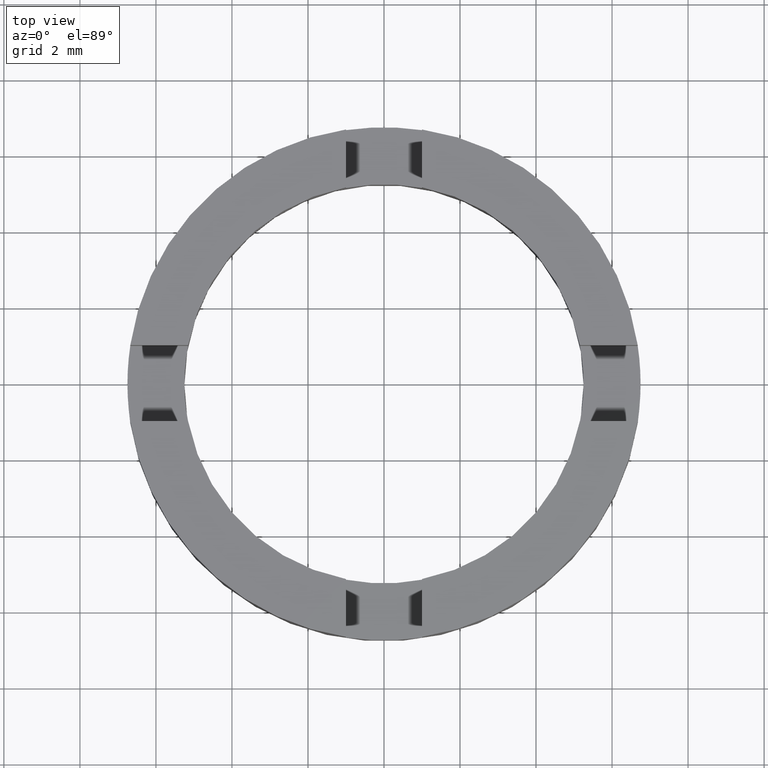
[diagram: clean part render]
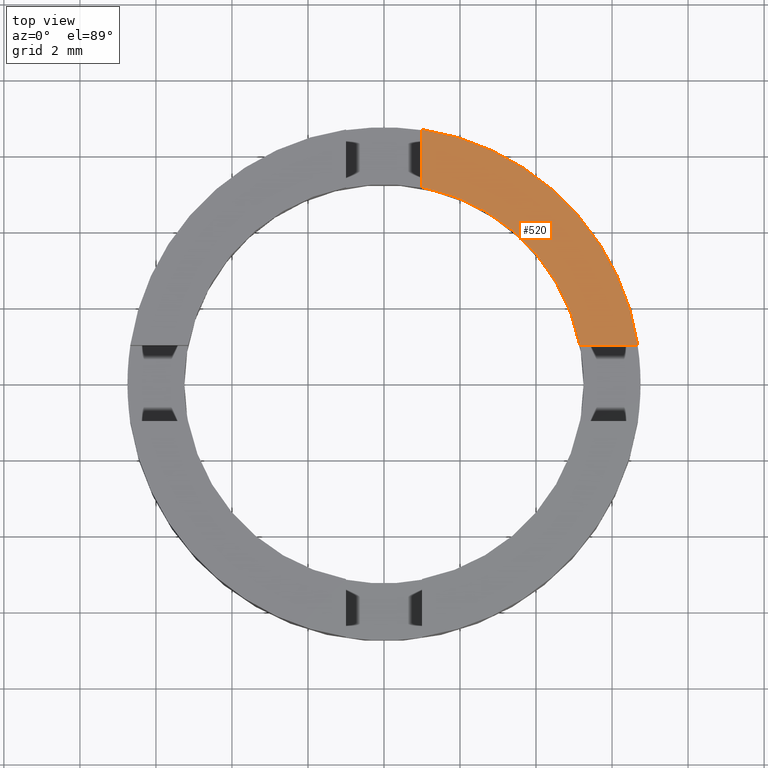
[diagram: same view with one face highlighted and labeled with its STEP entity id]
A machine part, top view. The second image highlights one B-rep face of the part: STEP entity #520.
In plain terms, the highlighted planar face has unit normal (0, 0, 1).
Its self-contained STEP definition (entity closure, byte-faithful):
#36 = CARTESIAN_POINT ( 'NONE',  ( 0.000000000000000000, 0.000000000000000000, 2.500000000000000000 ) ) ;
#70 = DIRECTION ( 'NONE',  ( 0.000000000000000000, 0.000000000000000000, 1.000000000000000000 ) ) ;
#107 = CIRCLE ( 'NONE', #419, 5.250000000000000000 ) ;
#115 = ORIENTED_EDGE ( 'NONE', *, *, #258, .F. ) ;
#123 = DIRECTION ( 'NONE',  ( 1.000000000000000000, 0.000000000000000000, 0.000000000000000000 ) ) ;
#125 = CARTESIAN_POINT ( 'NONE',  ( 1.000000000000001332, 6.675514961409343861, 2.500000000000000000 ) ) ;
#179 = CARTESIAN_POINT ( 'NONE',  ( 3.758567531283077831E-15, 0.9999999999999988898, 2.500000000000000000 ) ) ;
#198 = VERTEX_POINT ( 'NONE', #619 ) ;
#239 = EDGE_CURVE ( 'NONE', #449, #463, #330, .T. ) ;
#245 = DIRECTION ( 'NONE',  ( 1.000000000000000000, -3.758567531283081775E-15, 0.000000000000000000 ) ) ;
#258 = EDGE_CURVE ( 'NONE', #198, #463, #324, .T. ) ;
#290 = CARTESIAN_POINT ( 'NONE',  ( 6.675514961409347414, 0.9999999999999737987, 2.500000000000000000 ) ) ;
#300 = CARTESIAN_POINT ( 'NONE',  ( 0.000000000000000000, 0.000000000000000000, 2.500000000000000000 ) ) ;
#304 = CARTESIAN_POINT ( 'NONE',  ( 1.000000000000001332, 0.000000000000000000, 2.500000000000000000 ) ) ;
#324 = LINE ( 'NONE', #304, #335 ) ;
#330 = CIRCLE ( 'NONE', #455, 6.750000000000000000 ) ;
#335 = VECTOR ( 'NONE', #493, 1000.000000000000000 ) ;
#355 = FACE_OUTER_BOUND ( 'NONE', #575, .T. ) ;
#369 = LINE ( 'NONE', #179, #631 ) ;
#395 = PLANE ( 'NONE',  #567 ) ;
#403 = CARTESIAN_POINT ( 'NONE',  ( 5.153882032022079507, 0.9999999999999796829, 2.500000000000000000 ) ) ;
#406 = VERTEX_POINT ( 'NONE', #403 ) ;
#419 = AXIS2_PLACEMENT_3D ( 'NONE', #36, #583, #123 ) ;
#444 = ORIENTED_EDGE ( 'NONE', *, *, #722, .T. ) ;
#447 = DIRECTION ( 'NONE',  ( 1.000000000000000000, 0.000000000000000000, 0.000000000000000000 ) ) ;
#449 = VERTEX_POINT ( 'NONE', #290 ) ;
#455 = AXIS2_PLACEMENT_3D ( 'NONE', #695, #70, #447 ) ;
#463 = VERTEX_POINT ( 'NONE', #125 ) ;
#470 = ORIENTED_EDGE ( 'NONE', *, *, #239, .T. ) ;
#474 = ORIENTED_EDGE ( 'NONE', *, *, #710, .F. ) ;
#493 = DIRECTION ( 'NONE',  ( 0.000000000000000000, 1.000000000000000000, -0.000000000000000000 ) ) ;
#520 = ADVANCED_FACE ( 'NONE', ( #355 ), #395, .T. ) ;
#534 = DIRECTION ( 'NONE',  ( 0.000000000000000000, 0.000000000000000000, 1.000000000000000000 ) ) ;
#567 = AXIS2_PLACEMENT_3D ( 'NONE', #300, #534, #603 ) ;
#575 = EDGE_LOOP ( 'NONE', ( #115, #474, #444, #470 ) ) ;
#583 = DIRECTION ( 'NONE',  ( 0.000000000000000000, 0.000000000000000000, 1.000000000000000000 ) ) ;
#603 = DIRECTION ( 'NONE',  ( 1.000000000000000000, 0.000000000000000000, -0.000000000000000000 ) ) ;
#619 = CARTESIAN_POINT ( 'NONE',  ( 1.000000000000001332, 5.153882032022075066, 2.500000000000000000 ) ) ;
#631 = VECTOR ( 'NONE', #245, 1000.000000000000000 ) ;
#695 = CARTESIAN_POINT ( 'NONE',  ( 0.000000000000000000, 0.000000000000000000, 2.500000000000000000 ) ) ;
#710 = EDGE_CURVE ( 'NONE', #406, #198, #107, .T. ) ;
#722 = EDGE_CURVE ( 'NONE', #406, #449, #369, .T. ) ;